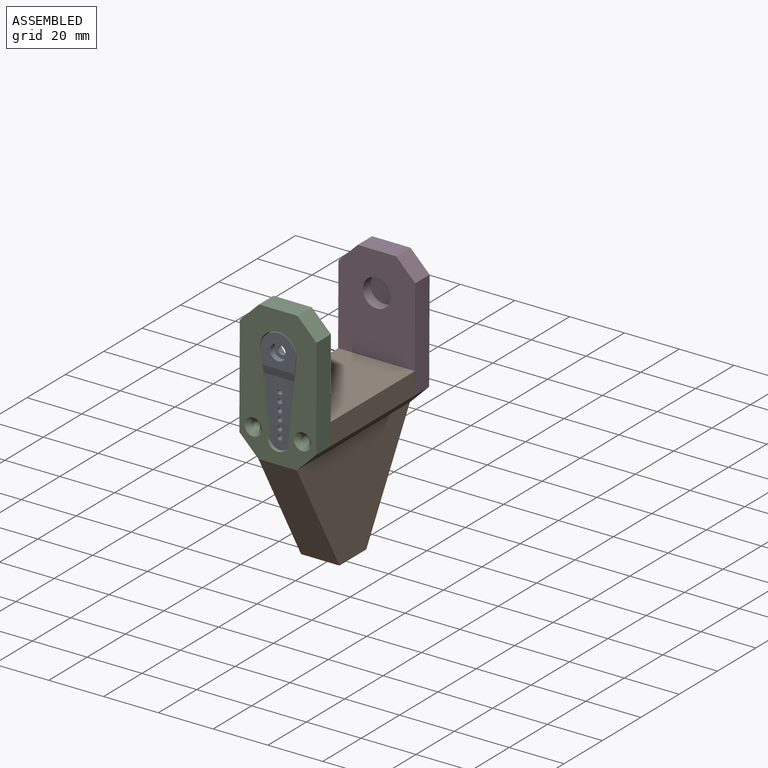
[diagram: assembled view]
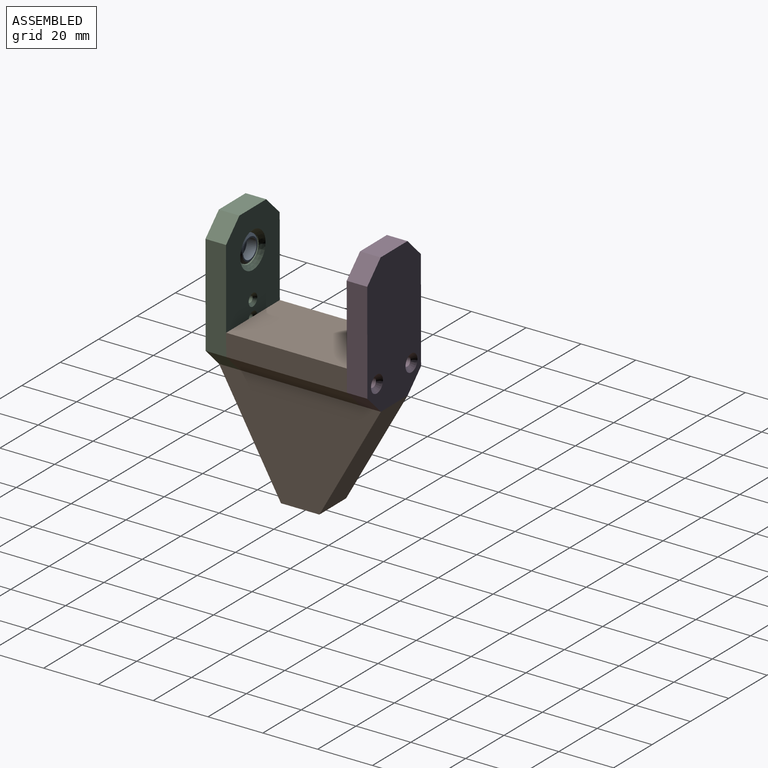
[diagram: assembled view, second angle]
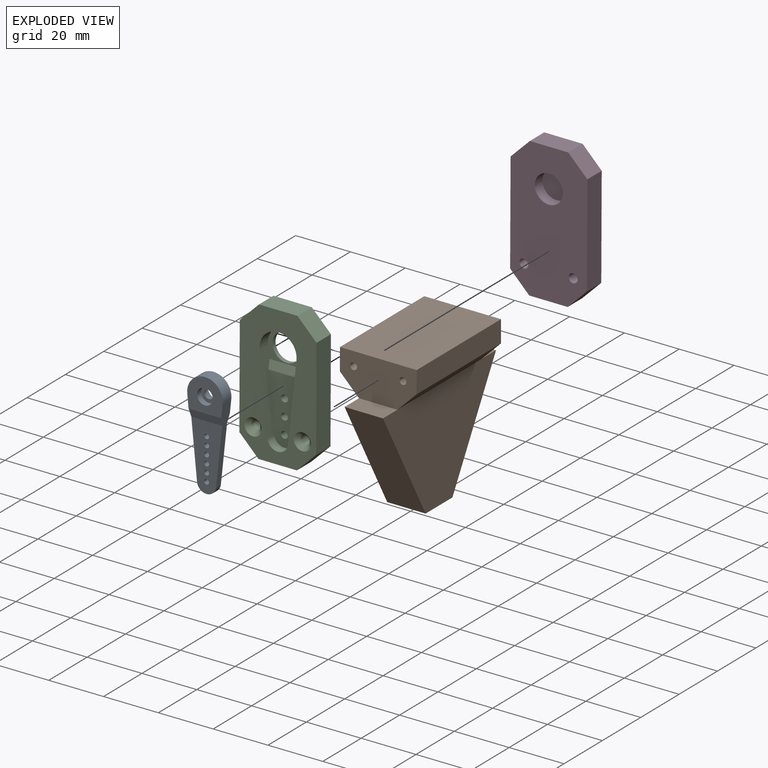
[diagram: exploded view]
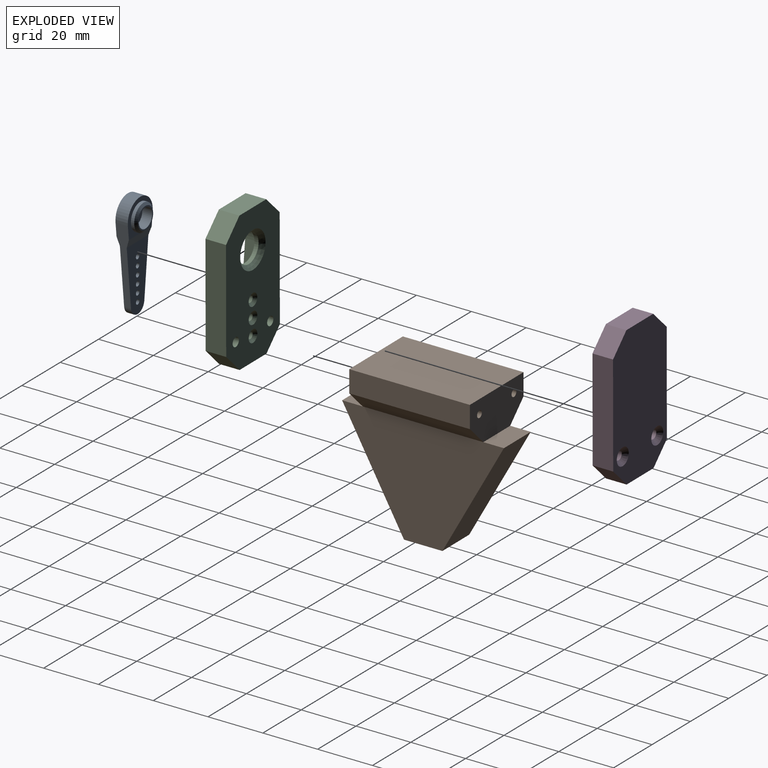
[diagram: exploded view, second angle]
ASSEMBLY  parts=4 mates=3
PART A: 24 faces, bbox 13x39x6.4 mm
  f0: plane 28.69x4.5mm, normal (0.99,0.1,0), area 84.8mm2, adj f1,f3,f4,f5,f6,f7,f8,f9
  f1: cylinder r=3.5mm len=6.96mm, axis (0,0,-1), area 25.7mm2, adj f0,f2,f6,f8
  f2: plane 28.69x4.5mm, normal (-0.99,0.1,0), area 84.8mm2, adj f1,f3,f4,f5,f6,f7,f8,f9
  f3: cylinder r=6.5mm len=13mm, axis (0,0,-1), area 98mm2, adj f0,f2,f4,f5
  f4: plane 13x12mm, normal (0,0,1), area 109.1mm2, adj f0,f2,f3,f7,f19
  f5: plane 13x12mm, normal (0,0,-1), area 60.4mm2, adj f0,f2,f3,f9,f16
  f6: plane 24x11.3mm, normal (0,0,1), area 192.8mm2, adj f0,f1,f2,f7,f10,f11,f12,f13
  f7: plane 11.93x3mm, normal (0,0.32,0.95), area 36.7mm2, adj f0,f2,f4,f6
  f8: plane 24x11.3mm, normal (0,0,-1), area 192.8mm2, adj f0,f1,f2,f9,f10,f11,f12,f13
  f9: plane 11.93x3mm, normal (0,0.32,-0.95), area 36.7mm2, adj f0,f2,f5,f8
  f10: cylinder r=0.88mm len=2.5mm, axis (0,0,-1), area 13.7mm2, adj f6,f8
  f11: cylinder r=0.88mm len=2.5mm, axis (0,0,-1), area 13.7mm2, adj f6,f8
  f12: cylinder r=0.88mm len=2.5mm, axis (0,0,-1), area 13.7mm2, adj f6,f8
  f13: cylinder r=0.88mm len=2.5mm, axis (0,0,-1), area 13.7mm2, adj f6,f8
  f14: cylinder r=0.88mm len=2.5mm, axis (0,0,-1), area 13.7mm2, adj f6,f8
  f15: cylinder r=0.88mm len=2.5mm, axis (0,0,-1), area 13.7mm2, adj f6,f8
  f16: cylinder r=4.88mm len=9.75mm, axis (0,0,1), area 36.8mm2, adj f5,f18
  f17: plane 8x8mm, normal (0,0,-1), area 11.8mm2, adj f18,f21
  f18: cone r=4mm half-angle=51.3deg, axis (0,0,1), area 31.2mm2, adj f16,f17
  f19: cylinder r=2.88mm len=5.75mm, axis (0,0,1), area 37.9mm2, adj f4,f20
  f20: plane 5.75x5.75mm, normal (0,0,1), area 17.9mm2, adj f19,f23
  f21: cylinder r=3.5mm len=7mm, axis (0,0,-1), area 79.2mm2, adj f17,f22
  f22: plane 7x7mm, normal (0,0,-1), area 30.4mm2, adj f21,f23
  f23: cylinder r=1.6mm len=3.2mm, axis (0,0,1), area 7mm2, adj f20,f22
PART B: 16 faces, bbox 28x59x55 mm
  f0: plane 28x15mm, normal (0,-1,0), area 361.2mm2, adj f1,f2,f4,f5,f6,f7,f8,f9
  f1: plane 44x7mm, normal (-0.71,0,-0.71), area 435.6mm2, adj f0,f3,f5,f15
  f2: plane 44x7mm, normal (0.71,0,-0.71), area 435.6mm2, adj f0,f3,f4,f10
  f3: plane 28x15mm, normal (0,1,0), area 361.2mm2, adj f1,f2,f4,f5,f6,f7,f8,f12
  f4: plane 44x8mm, normal (1,0,0), area 352mm2, adj f0,f2,f3,f6
  f5: plane 44x8mm, normal (-1,0,0), area 352mm2, adj f0,f1,f3,f6
  f6: plane 44x28mm, normal (0,0,1), area 1232mm2, adj f0,f3,f4,f5
  f7: cylinder r=1.25mm len=44mm, axis (0,1,0), area 345.6mm2, adj f0,f3
  f8: cylinder r=1.25mm len=44mm, axis (0,1,0), area 345.6mm2, adj f0,f3
  f9: plane 14x7.5mm, normal (0,0,1), area 105mm2, adj f0,f10,f11,f15
  f10: plane 59x40mm, normal (1,0,0), area 1460mm2, adj f2,f9,f11,f12,f13,f14
  f11: plane 40x22.5mm, normal (0,-0.87,-0.49), area 642.5mm2, adj f9,f10,f13,f15
  f12: plane 14x7.5mm, normal (0,0,1), area 105mm2, adj f3,f10,f14,f15
  f13: plane 14x14mm, normal (0,0,-1), area 196mm2, adj f10,f11,f14,f15
  f14: plane 40x22.5mm, normal (0,0.87,-0.49), area 642.5mm2, adj f10,f12,f13,f15
  f15: plane 59x40mm, normal (-1,0,0), area 1460mm2, adj f1,f9,f11,f12,f13,f14
PART C: 29 faces, bbox 28x7.5x51 mm
  f0: plane 51x28mm, normal (0,1,0), area 868.9mm2, adj f1,f2,f3,f5,f8,f9,f10,f11
  f1: plane 14x7.5mm, normal (0,0,1), area 105mm2, adj f0,f7,f10,f11
  f2: plane 37x7.5mm, normal (-1,0,0), area 277.5mm2, adj f0,f7,f9,f10
  f3: plane 14x7.5mm, normal (0,0,-1), area 105mm2, adj f0,f7,f8,f9
  f4: cylinder r=1.62mm len=6mm, axis (0,-1,0), area 61.3mm2, adj f7,f27
  f5: plane 37x7.5mm, normal (1,0,0), area 277.5mm2, adj f0,f7,f8,f11
  f6: cylinder r=1.62mm len=6mm, axis (0,-1,0), area 61.3mm2, adj f7,f28
  f7: plane 51x28mm, normal (0,-1,0), area 1127.8mm2, adj f1,f2,f3,f4,f5,f6,f8,f9
  f8: plane 7.5x7mm, normal (0.71,0,-0.71), area 74.2mm2, adj f0,f3,f5,f7
  f9: plane 7.5x7mm, normal (-0.71,0,-0.71), area 74.2mm2, adj f0,f2,f3,f7
  f10: plane 7.5x7mm, normal (-0.71,0,0.71), area 74.2mm2, adj f0,f1,f2,f7
  f11: plane 7.5x7mm, normal (0.71,0,0.71), area 74.2mm2, adj f0,f1,f5,f7
  f12: cylinder r=3.75mm len=7.46mm, axis (0,-1,0), area 38.5mm2, adj f0,f13,f15,f17
  f13: plane 28.69x4.5mm, normal (0.99,0,0.1), area 107.3mm2, adj f0,f12,f14,f16,f17,f18
  f14: cylinder r=6.75mm len=13.5mm, axis (0,-1,0), area 101.7mm2, adj f0,f13,f15,f16
  f15: plane 28.69x4.5mm, normal (-0.99,0,0.1), area 107.3mm2, adj f0,f12,f14,f16,f17,f18
  f16: plane 13.5x12.25mm, normal (0,1,0), area 60.5mm2, adj f13,f14,f15,f18,f19
  f17: plane 24.25x11.8mm, normal (0,1,0), area 205.7mm2, adj f12,f13,f15,f18,f20,f21,f22
  f18: plane 12.43x3mm, normal (0,0.95,0.32), area 38.3mm2, adj f13,f15,f16,f17
  f19: cylinder r=5.12mm len=10.25mm, axis (0,1,0), area 48.3mm2, adj f16,f26
  f20: cylinder r=1.25mm len=3mm, axis (0,1,0), area 23.6mm2, adj f17,f23
  f21: cylinder r=1.25mm len=3mm, axis (0,1,0), area 23.6mm2, adj f17,f24
  f22: cylinder r=1.25mm len=3mm, axis (0,1,0), area 23.6mm2, adj f17,f25
  f23: cone r=2.25mm half-angle=45deg, axis (0,-1,0), area 15.6mm2, adj f7,f20
  f24: cone r=2.25mm half-angle=45deg, axis (0,-1,0), area 15.6mm2, adj f7,f21
  f25: cone r=2.25mm half-angle=45deg, axis (0,-1,0), area 15.6mm2, adj f7,f22
  f26: cone r=6.62mm half-angle=45deg, axis (0,-1,0), area 78.3mm2, adj f7,f19
  f27: cone r=3.12mm half-angle=45deg, axis (0,1,0), area 31.7mm2, adj f0,f4
  f28: cone r=3.12mm half-angle=45deg, axis (0,1,0), area 31.7mm2, adj f0,f6
PART D: 16 faces, bbox 28x7.5x51 mm
  f0: plane 7.5x7mm, normal (-0.71,0,-0.71), area 74.2mm2, adj f1,f9,f10,f11
  f1: plane 14x7.5mm, normal (0,0,-1), area 105mm2, adj f0,f2,f10,f11
  f2: plane 7.5x7mm, normal (0.71,0,-0.71), area 74.2mm2, adj f1,f3,f10,f11
  f3: plane 37x7.5mm, normal (1,0,0), area 277.5mm2, adj f2,f4,f10,f11
  f4: plane 7.5x7mm, normal (0.71,0,0.71), area 74.2mm2, adj f3,f5,f10,f11
  f5: plane 14x7.5mm, normal (0,0,1), area 105mm2, adj f4,f6,f10,f11
  f6: plane 7.5x7mm, normal (-0.71,0,0.71), area 74.2mm2, adj f5,f9,f10,f11
  f7: cylinder r=1.62mm len=6mm, axis (0,1,0), area 61.3mm2, adj f11,f14
  f8: cylinder r=1.62mm len=6mm, axis (0,1,0), area 61.3mm2, adj f11,f15
  f9: plane 37x7.5mm, normal (-1,0,0), area 277.5mm2, adj f0,f6,f10,f11
  f10: plane 51x28mm, normal (0,-1,0), area 1268.6mm2, adj f0,f1,f2,f3,f4,f5,f6,f9
  f11: plane 51x28mm, normal (0,1,0), area 1230.9mm2, adj f0,f1,f2,f3,f4,f5,f6,f7
  f12: cylinder r=5.12mm len=10.25mm, axis (0,1,0), area 128.8mm2, adj f11,f13
  f13: plane 10.25x10.25mm, normal (0,1,0), area 82.5mm2, adj f12
  f14: cone r=1.62mm half-angle=45deg, axis (0,-1,0), area 31.7mm2, adj f7,f10
  f15: cone r=1.62mm half-angle=45deg, axis (0,-1,0), area 31.7mm2, adj f8,f10
PLACE A rot(axis=(0,-0.71,0.71),179.9deg) t=(0.05,-24.62,0.1)mm
PLACE B rot(axis=(0,0,-1),179.9deg) t=(0.02,0.38,0.08)mm
PLACE C rot(axis=(0,0,-1),179.9deg) t=(0.02,0.38,0.08)mm fixed
PLACE D rot(axis=(0,0,-1),179.9deg) t=(0.02,0.38,0.08)mm
MATE fastened B.f8 <-> D.f7  axis (0,1,0) through (8.9,22.36,-26.98)mm
MATE fastened C.f6 <-> B.f8  axis (0,1,0) through (8.94,-21.64,-26.94)mm
MATE fastened C.f26 <-> A.f3  axis (0,-1,0) through (0.05,-24.62,0.1)mm
